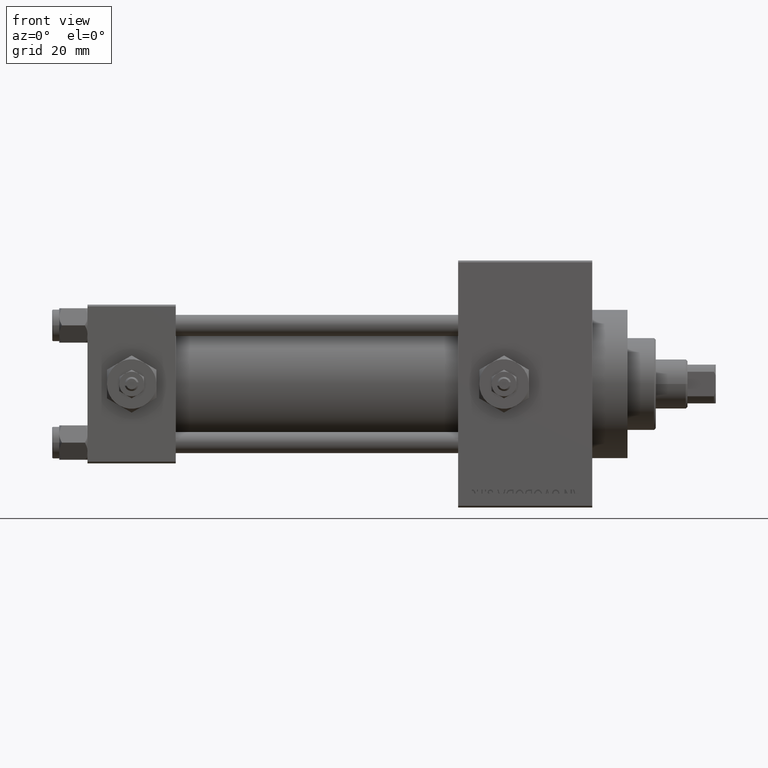
[diagram: clean part render]
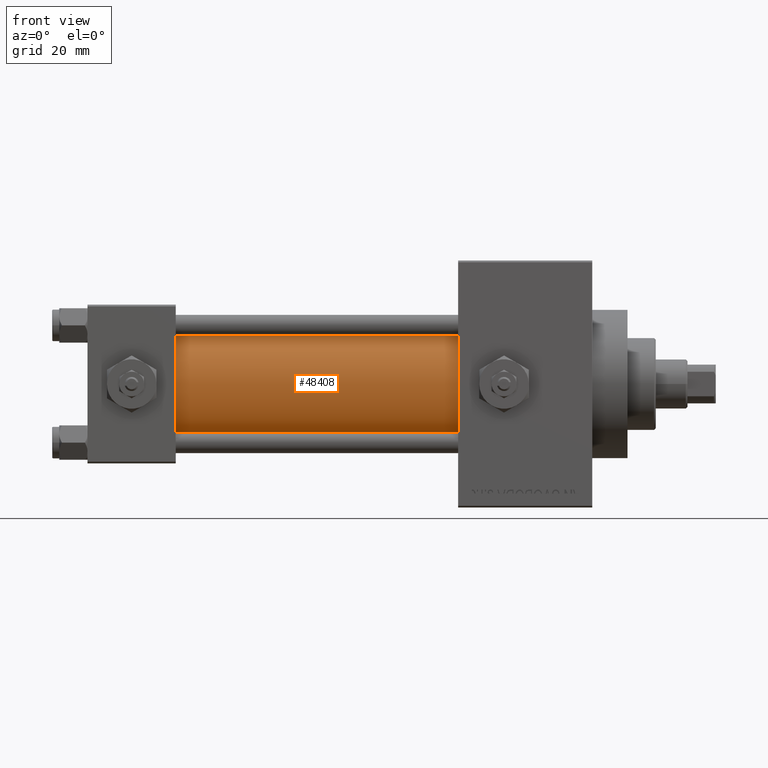
[diagram: same view with one face highlighted and labeled with its STEP entity id]
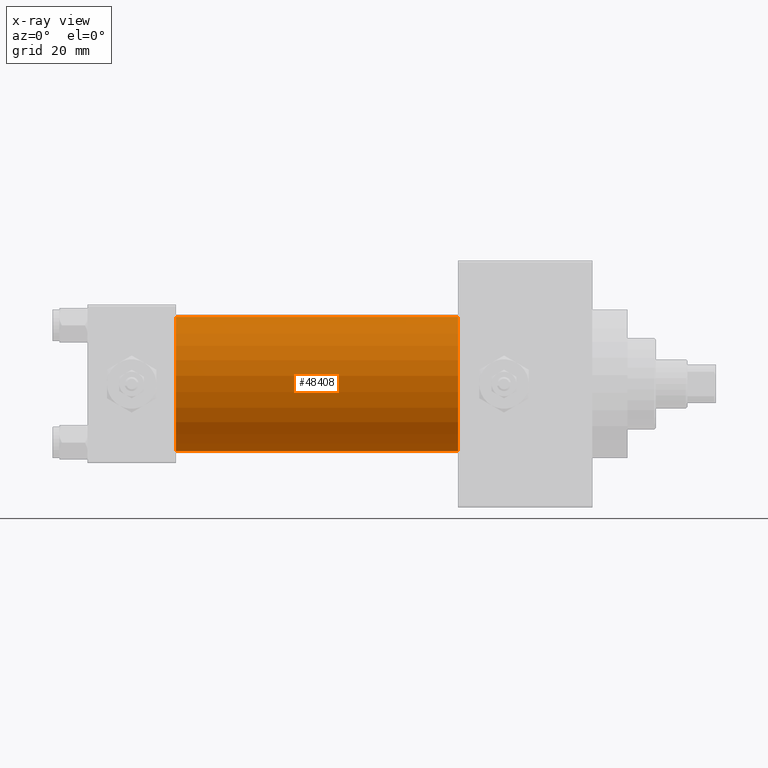
[diagram: x-ray of the same camera — body ghosted, the highlighted face saturated]
A machine part, front view. The second image highlights one B-rep face of the part: STEP entity #48408.
The next image is the same camera in x-ray: the body ghosted, the highlighted face saturated — about 0% of this face is hidden behind the body in this view.
In plain terms, the highlighted cylindrical surface (partial cylindrical patch) has radius 19 mm, axis along (-1, -0, -0).
Its self-contained STEP definition (entity closure, byte-faithful):
#97 = CARTESIAN_POINT ( 'NONE',  ( 24.99999999999999289, -2.752562955852396712E-16, -19.00000000000000000 ) ) ;
#1114 = VERTEX_POINT ( 'NONE', #1333 ) ;
#1333 = CARTESIAN_POINT ( 'NONE',  ( 105.0000000000000142, -2.752562955852396712E-16, -19.00000000000000000 ) ) ;
#2648 = CARTESIAN_POINT ( 'NONE',  ( 105.0000000000000142, -2.602085213965210642E-15, 0.000000000000000000 ) ) ;
#7775 = EDGE_CURVE ( 'NONE', #37420, #1114, #8697, .T. ) ;
#8697 = CIRCLE ( 'NONE', #37352, 19.00000000000000000 ) ;
#9798 = DIRECTION ( 'NONE',  ( -1.000000000000000000, -0.000000000000000000, -0.000000000000000000 ) ) ;
#9895 = DIRECTION ( 'NONE',  ( 0.000000000000000000, 0.000000000000000000, -1.000000000000000000 ) ) ;
#10705 = DIRECTION ( 'NONE',  ( 0.000000000000000000, 0.000000000000000000, 1.000000000000000000 ) ) ;
#11190 = CYLINDRICAL_SURFACE ( 'NONE', #23946, 19.00000000000000000 ) ;
#15440 = CIRCLE ( 'NONE', #21803, 19.00000000000000000 ) ;
#15482 = EDGE_CURVE ( 'NONE', #37420, #16399, #44741, .T. ) ;
#16399 = VERTEX_POINT ( 'NONE', #24866 ) ;
#16639 = EDGE_LOOP ( 'NONE', ( #36804, #32789, #29776, #49291 ) ) ;
#17514 = CARTESIAN_POINT ( 'NONE',  ( 105.0000000000000142, -2.752562955852396712E-16, -19.00000000000000000 ) ) ;
#17618 = CARTESIAN_POINT ( 'NONE',  ( 105.0000000000000142, -2.602085213965210642E-15, 19.00000000000000000 ) ) ;
#21803 = AXIS2_PLACEMENT_3D ( 'NONE', #22629, #44791, #48764 ) ;
#22046 = EDGE_CURVE ( 'NONE', #16399, #38008, #15440, .T. ) ;
#22629 = CARTESIAN_POINT ( 'NONE',  ( 24.99999999999999289, -2.602085213965210642E-15, 0.000000000000000000 ) ) ;
#22661 = CARTESIAN_POINT ( 'NONE',  ( 105.0000000000000142, -2.602085213965210642E-15, 0.000000000000000000 ) ) ;
#23946 = AXIS2_PLACEMENT_3D ( 'NONE', #22661, #44821, #10705 ) ;
#24866 = CARTESIAN_POINT ( 'NONE',  ( 24.99999999999999289, -2.602085213965210642E-15, 19.00000000000000000 ) ) ;
#28730 = LINE ( 'NONE', #17514, #34208 ) ;
#29776 = ORIENTED_EDGE ( 'NONE', *, *, #15482, .T. ) ;
#32470 = CARTESIAN_POINT ( 'NONE',  ( 105.0000000000000142, -2.602085213965210642E-15, 19.00000000000000000 ) ) ;
#32789 = ORIENTED_EDGE ( 'NONE', *, *, #7775, .F. ) ;
#34208 = VECTOR ( 'NONE', #9798, 1000.000000000000000 ) ;
#36804 = ORIENTED_EDGE ( 'NONE', *, *, #43108, .F. ) ;
#37352 = AXIS2_PLACEMENT_3D ( 'NONE', #2648, #47005, #9895 ) ;
#37420 = VERTEX_POINT ( 'NONE', #32470 ) ;
#38008 = VERTEX_POINT ( 'NONE', #97 ) ;
#39993 = VECTOR ( 'NONE', #48004, 1000.000000000000000 ) ;
#43108 = EDGE_CURVE ( 'NONE', #1114, #38008, #28730, .T. ) ;
#44741 = LINE ( 'NONE', #17618, #39993 ) ;
#44791 = DIRECTION ( 'NONE',  ( 1.000000000000000000, -0.000000000000000000, 0.000000000000000000 ) ) ;
#44821 = DIRECTION ( 'NONE',  ( -1.000000000000000000, -0.000000000000000000, -0.000000000000000000 ) ) ;
#45313 = FACE_OUTER_BOUND ( 'NONE', #16639, .T. ) ;
#47005 = DIRECTION ( 'NONE',  ( 1.000000000000000000, 0.000000000000000000, 0.000000000000000000 ) ) ;
#48004 = DIRECTION ( 'NONE',  ( -1.000000000000000000, -0.000000000000000000, -0.000000000000000000 ) ) ;
#48408 = ADVANCED_FACE ( 'NONE', ( #45313 ), #11190, .T. ) ;
#48764 = DIRECTION ( 'NONE',  ( 0.000000000000000000, 0.000000000000000000, 1.000000000000000000 ) ) ;
#49291 = ORIENTED_EDGE ( 'NONE', *, *, #22046, .T. ) ;